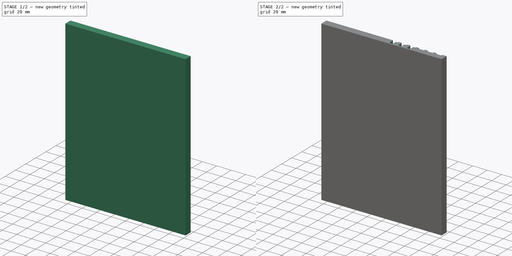
[diagram: build sequence overview — one tinted view per stage of 2, left to right]
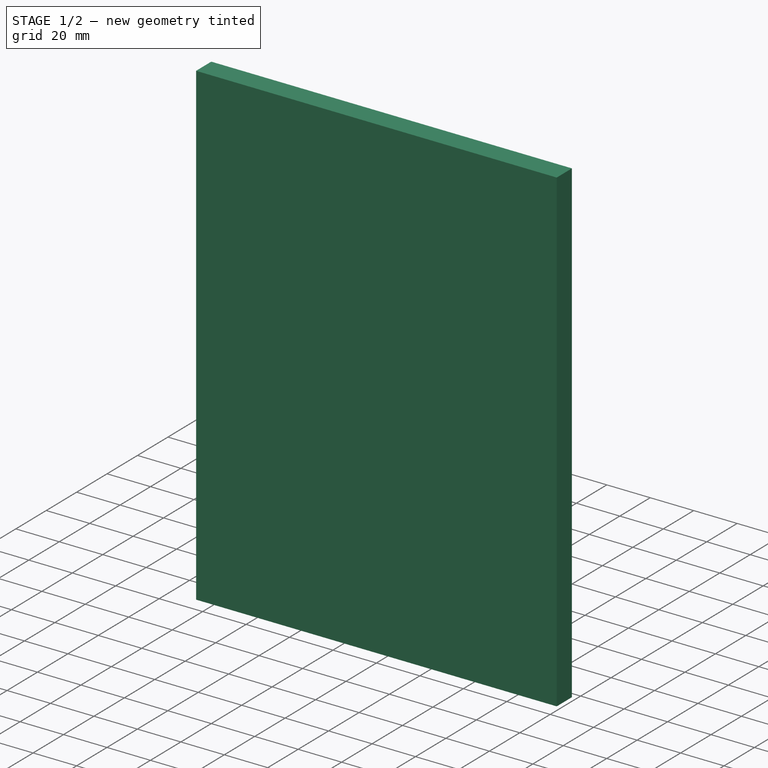
[diagram: stage 1 of 2 — iso view after this stage's code; geometry added in this stage tinted green]
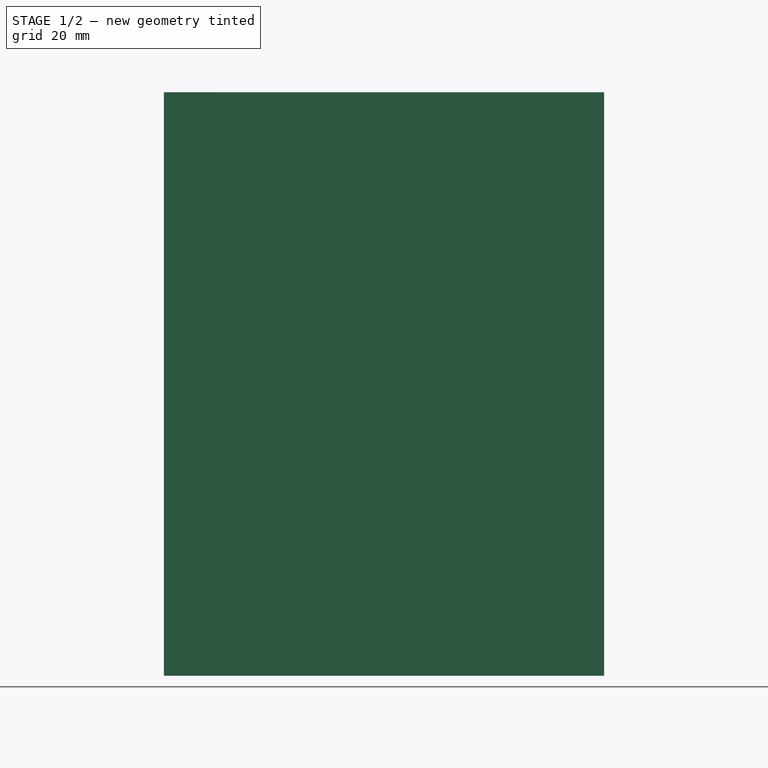
[diagram: stage 1 of 2 — front view after this stage's code; geometry added in this stage tinted green]
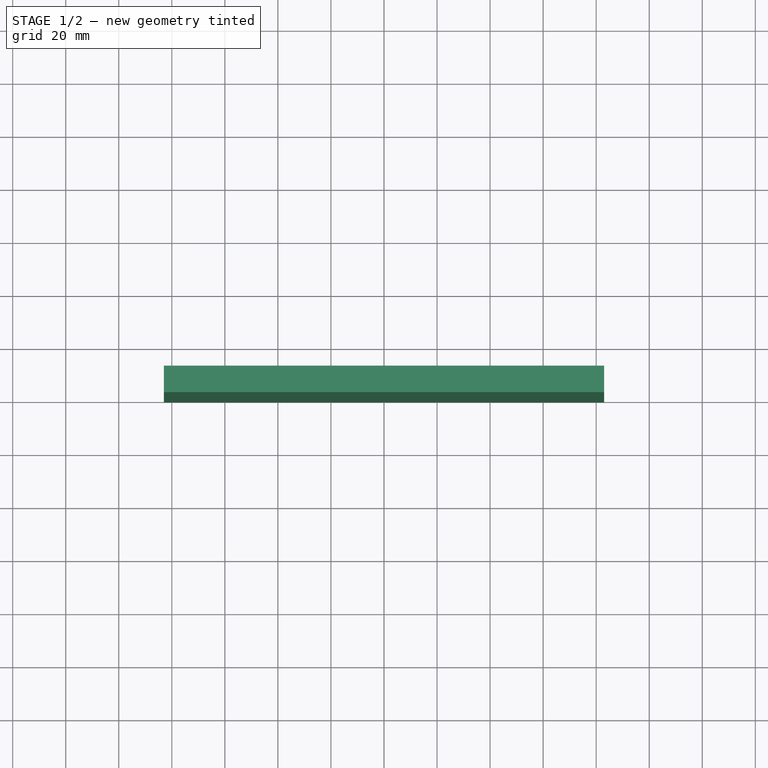
[diagram: stage 1 of 2 — top view after this stage's code; geometry added in this stage tinted green]
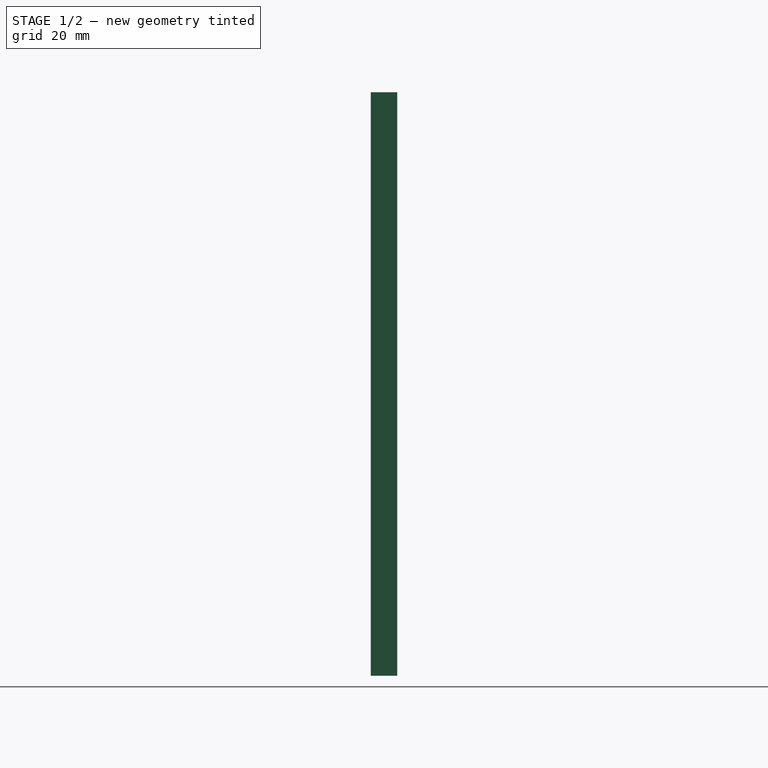
[diagram: stage 1 of 2 — right view after this stage's code; geometry added in this stage tinted green]
FCSTD DOCUMENT  (FreeCAD 0.16R6698 (Git))
Label: pnp feeder base
License: All rights reserved
LicenseURL: http://en.wikipedia.org/wiki/All_rights_reserved
objects: Sketcher::SketchObject×2, PartDesign::Pad×1, PartDesign::Pocket×1
note: 6 computed .brp shape members not serialized (recipe doc carries the construction recipe); baked Part::Feature solids carry a one-line shape summary decoded from their .brp

FEATURE [Sketcher::SketchObject] Sketch  label="base"
  sketch-geometry (6):
    g0: LineSegment [constr] StartX=-80 StartY=22.6606 StartZ=0 EndX=-80 EndY=0 EndZ=0
    g1: LineSegment [constr] StartX=80 StartY=22.6606 StartZ=0 EndX=80 EndY=0 EndZ=0
    g2: LineSegment StartX=-83 StartY=0 StartZ=0 EndX=83 EndY=0 EndZ=0
    g3: LineSegment StartX=83 StartY=0 StartZ=0 EndX=83 EndY=10 EndZ=0
    g4: LineSegment StartX=83 StartY=10 StartZ=0 EndX=-83 EndY=10 EndZ=0
    g5: LineSegment StartX=-83 StartY=10 StartZ=0 EndX=-83 EndY=0 EndZ=0
  constraints (18):
    c: Vertical(g0)
    c: Vertical(g1)
    c: PointOnObject(g1,g-1)
    c: DistanceX(g0,g1) = 160
    c: PointOnObject(g0,g-1)
    c: Symmetric(g0,g1,g-2)
    c: Coincident(g2,g3)
    c: Coincident(g3,g4)
    c: Coincident(g4,g5)
    c: Coincident(g5,g2)
    c: Horizontal(g2)
    c: Horizontal(g4)
    c: Vertical(g3)
    c: Vertical(g5)
    c: PointOnObject(g2,g-1)
    c: DistanceY(g5,g5) = 10
    c: DistanceX(g4,g4) = 166
    c: Symmetric(g4,g3,g-2)
FEATURE [PartDesign::Pad] Pad
  Length = 220
  Length2 = 100
  Sketch = -> Sketch
  Type = 0
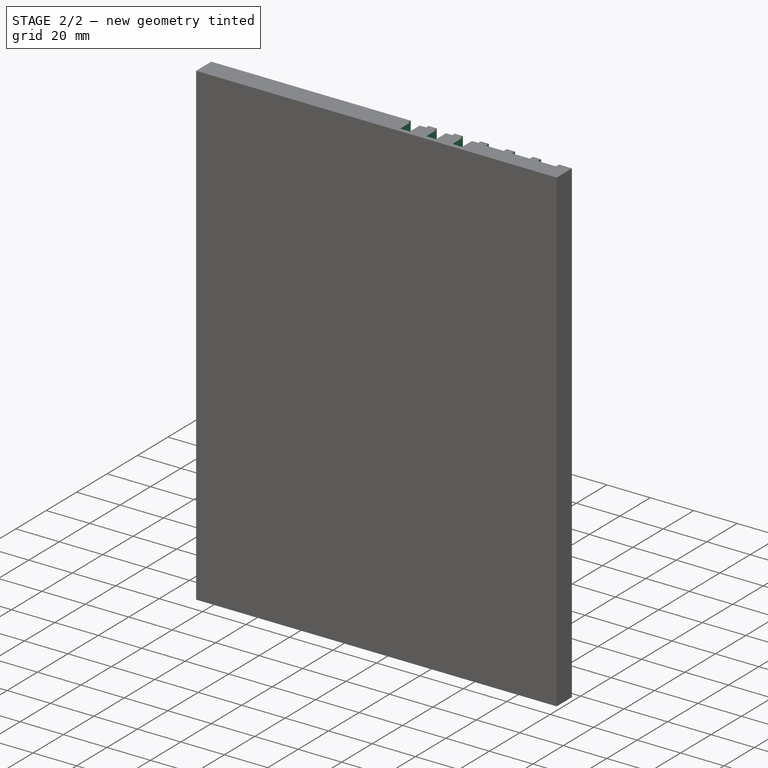
[diagram: stage 2 of 2 — iso view after this stage's code; geometry added in this stage tinted green]
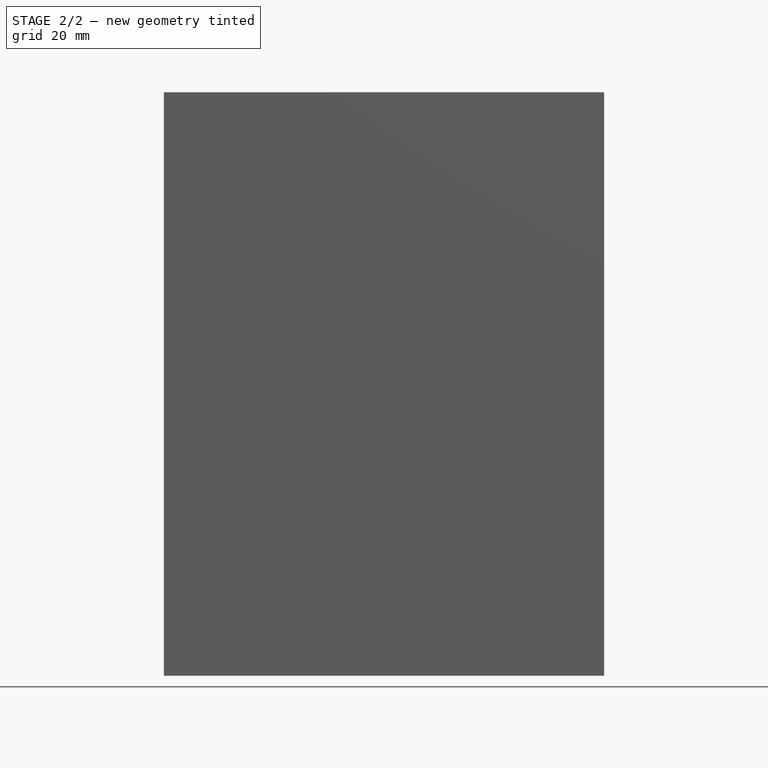
[diagram: stage 2 of 2 — front view after this stage's code; geometry added in this stage tinted green]
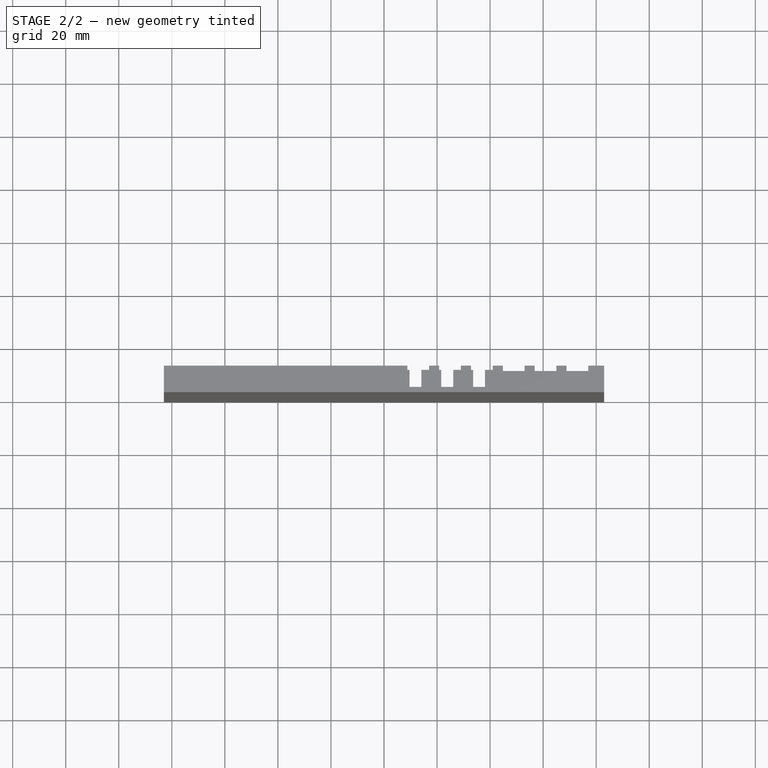
[diagram: stage 2 of 2 — top view after this stage's code; geometry added in this stage tinted green]
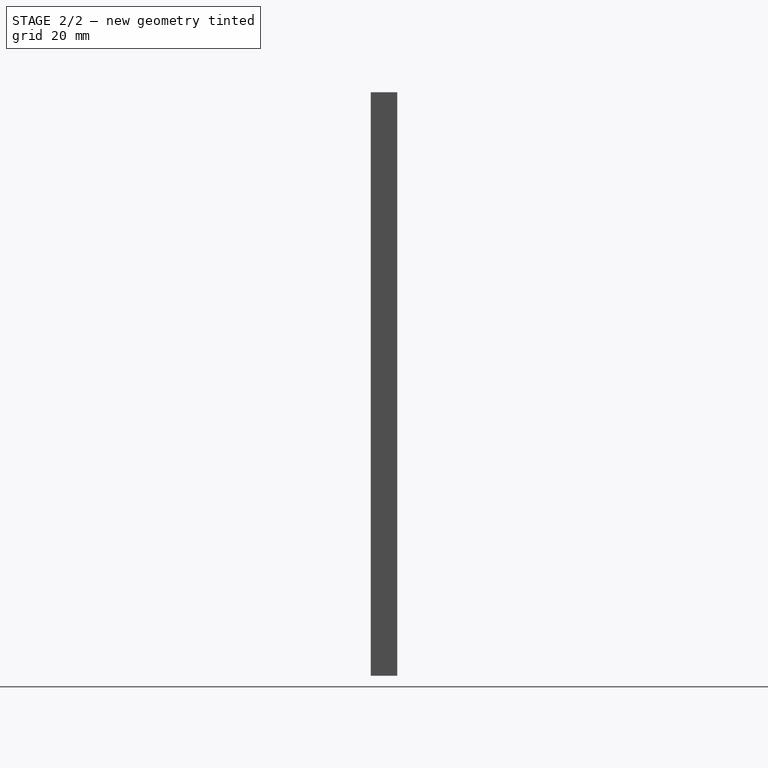
[diagram: stage 2 of 2 — right view after this stage's code; geometry added in this stage tinted green]
FEATURE [Sketcher::SketchObject] Sketch001  label="notches"
  ExternalGeometry = -> [Pad]
  Placement = pos=(0,0,220) rot=(0,0,1;0rad)
  Support = -> Pad [Face6]
  sketch-geometry (38):
    g0: LineSegment [constr] StartX=-80 StartY=12.2995 StartZ=0 EndX=-80 EndY=0 EndZ=0
    g1: LineSegment [constr] StartX=80 StartY=12.2995 StartZ=0 EndX=80 EndY=0 EndZ=0
    g2: LineSegment StartX=77 StartY=10 StartZ=0 EndX=68.8 EndY=10 EndZ=0
    g3: LineSegment StartX=68.8 StartY=10 StartZ=0 EndX=68.8 EndY=8 EndZ=0
    g4: LineSegment StartX=68.8 StartY=8 StartZ=0 EndX=77 EndY=8 EndZ=0
    g5: LineSegment StartX=77 StartY=8 StartZ=0 EndX=77 EndY=10 EndZ=0
    g6: LineSegment StartX=65 StartY=10 StartZ=0 EndX=56.8 EndY=10 EndZ=0
    g7: LineSegment StartX=56.8 StartY=10 StartZ=0 EndX=56.8 EndY=8 EndZ=0
    g8: LineSegment StartX=56.8 StartY=8 StartZ=0 EndX=65 EndY=8 EndZ=0
    g9: LineSegment StartX=65 StartY=8 StartZ=0 EndX=65 EndY=10 EndZ=0
    g10: LineSegment StartX=32.8 StartY=10 StartZ=0 EndX=41 EndY=10 EndZ=0
    g11: LineSegment StartX=41 StartY=10 StartZ=0 EndX=41 EndY=8.4 EndZ=0
    g12: LineSegment StartX=41 StartY=8.4 StartZ=0 EndX=38.1 EndY=8.4 EndZ=0
    g13: LineSegment StartX=32.8 StartY=8.4 StartZ=0 EndX=32.8 EndY=10 EndZ=0
    g14: LineSegment StartX=38.1 StartY=8.4 StartZ=0 EndX=38.1 EndY=2 EndZ=0
    g15: LineSegment StartX=38.1 StartY=2 StartZ=0 EndX=33.6 EndY=2 EndZ=0
    g16: LineSegment StartX=33.6 StartY=2 StartZ=0 EndX=33.6 EndY=8.4 EndZ=0
    g17: LineSegment StartX=33.6 StartY=8.4 StartZ=0 EndX=32.8 EndY=8.4 EndZ=0
    g18: LineSegment StartX=44.8 StartY=10 StartZ=0 EndX=53 EndY=10 EndZ=0
    g19: LineSegment StartX=53 StartY=10 StartZ=0 EndX=53 EndY=8 EndZ=0
    g20: LineSegment StartX=53 StartY=8 StartZ=0 EndX=44.8 EndY=8 EndZ=0
    g21: LineSegment StartX=44.8 StartY=8 StartZ=0 EndX=44.8 EndY=10 EndZ=0
    g22: LineSegment StartX=20.8 StartY=10 StartZ=0 EndX=20.8 EndY=8.4 EndZ=0
    g23: LineSegment StartX=20.8 StartY=8.4 StartZ=0 EndX=21.6 EndY=8.4 EndZ=0
    g24: LineSegment StartX=21.6 StartY=8.4 StartZ=0 EndX=21.6 EndY=2 EndZ=0
    g25: LineSegment StartX=21.6 StartY=2 StartZ=0 EndX=26.1 EndY=2 EndZ=0
    g26: LineSegment StartX=26.1 StartY=2 StartZ=0 EndX=26.1 EndY=8.4 EndZ=0
    g27: LineSegment StartX=26.1 StartY=8.4 StartZ=0 EndX=29 EndY=8.4 EndZ=0
    g28: LineSegment StartX=29 StartY=8.4 StartZ=0 EndX=29 EndY=10 EndZ=0
    g29: LineSegment StartX=29 StartY=10 StartZ=0 EndX=20.8 EndY=10 EndZ=0
    g30: LineSegment StartX=17 StartY=10 StartZ=0 EndX=17 EndY=8.4 EndZ=0
    g31: LineSegment StartX=17 StartY=8.4 StartZ=0 EndX=14.1 EndY=8.4 EndZ=0
    g32: LineSegment StartX=14.1 StartY=8.4 StartZ=0 EndX=14.1 EndY=2 EndZ=0
    g33: LineSegment StartX=14.1 StartY=2 StartZ=0 EndX=9.6 EndY=2 EndZ=0
    g34: LineSegment StartX=9.6 StartY=2 StartZ=0 EndX=9.6 EndY=8.4 EndZ=0
    g35: LineSegment StartX=9.6 StartY=8.4 StartZ=0 EndX=8.8 EndY=8.4 EndZ=0
    g36: LineSegment StartX=8.8 StartY=8.4 StartZ=0 EndX=8.8 EndY=10 EndZ=0
    g37: LineSegment StartX=8.8 StartY=10 StartZ=0 EndX=17 EndY=10 EndZ=0
  constraints (114):
    c: Vertical(g0)
    c: Vertical(g1)
    c: PointOnObject(g0,g-1)
    c: PointOnObject(g1,g-1)
    c: Symmetric(g0,g1,g-2)
    c: DistanceX(g0,g1) = 160
    c: Coincident(g2,g3)
    c: Coincident(g3,g4)
    c: Coincident(g4,g5)
    c: Coincident(g5,g2)
    c: Horizontal(g2)
    c: Horizontal(g4)
    c: Vertical(g3)
    c: Vertical(g5)
    c: Coincident(g6,g7)
    c: Coincident(g7,g8)
    c: Coincident(g8,g9)
    c: Coincident(g9,g6)
    c: Horizontal(g6)
    c: Horizontal(g8)
    c: Vertical(g7)
    c: Vertical(g9)
    c: DistanceX(g2,g-3) = 6
    c: DistanceX(g2,g2) = 8.2
    c: DistanceX(g6,g2) = 3.8
    c: DistanceX(g6,g6) = 8.2
    c: DistanceY(g9,g9) = 2
    c: DistanceY(g3,g3) = 2
    c: PointOnObject(g6,g-4)
    c: PointOnObject(g2,g-4)
    c: Coincident(g10,g11)
    c: Coincident(g11,g12)
    c: Coincident(g17,g13)
    c: Coincident(g13,g10)
    c: Horizontal(g10)
    c: Horizontal(g12)
    c: Vertical(g11)
    c: Vertical(g13)
    c: PointOnObject(g10,g-4)
    c: DistanceY(g11,g11) = 1.6
    c: DistanceX(g10,g10) = 8.2
    c: Coincident(g14,g15)
    c: Coincident(g15,g16)
    c: Horizontal(g15)
    c: Vertical(g14)
    c: Vertical(g16)
    c: PointOnObject(g16,g12)
    c: PointOnObject(g12,g14)
    c: PointOnObject(g17,g16)
    c: Tangent(g12,g17)
    c: DistanceX(g17,g17) = 0.8
    c: DistanceY(g16,g16) = 6.4
    c: DistanceX(g15,g15) = 4.5
    c: Coincident(g18,g19)
    c: Coincident(g19,g20)
    c: Coincident(g20,g21)
    c: Coincident(g21,g18)
    c: Horizontal(g18)
    c: Horizontal(g20)
    c: Vertical(g19)
    c: Vertical(g21)
    c: PointOnObject(g18,g-4)
    c: DistanceY(g21,g21) = 2
    c: DistanceX(g20,g20) = 8.2
    c: DistanceX(g18,g6) = 3.8
    c: DistanceX(g10,g18) = 3.8
    c: PointOnObject(g22,g-4)
    c: Vertical(g22)
    c: Coincident(g22,g23)
    c: Horizontal(g23)
    c: Coincident(g23,g24)
    c: Vertical(g24)
    c: Coincident(g24,g25)
    c: Horizontal(g25)
    c: Coincident(g25,g26)
    c: Vertical(g26)
    c: Coincident(g26,g27)
    c: Horizontal(g27)
    c: Coincident(g27,g28)
    c: PointOnObject(g28,g-4)
    c: Vertical(g28)
    c: Coincident(g28,g29)
    c: Coincident(g29,g22)
    c: Equal(g28,g22)
    c: DistanceY(g28,g28) = 1.6
    c: DistanceX(g23,g23) = 0.8
    c: DistanceY(g24,g24) = 6.4
    c: DistanceX(g25,g25) = 4.5
    c: DistanceX(g28,g10) = 3.8
    c: DistanceX(g22,g28) = 8.2
    c: PointOnObject(g30,g-4)
    c: Vertical(g30)
    c: Coincident(g30,g31)
    c: Horizontal(g31)
    c: Coincident(g31,g32)
    c: Vertical(g32)
    c: Coincident(g32,g33)
    c: Horizontal(g33)
    c: Coincident(g33,g34)
    c: Vertical(g34)
    c: Coincident(g34,g35)
    c: Horizontal(g35)
    c: Coincident(g35,g36)
    c: PointOnObject(g36,g-4)
    c: Coincident(g36,g37)
    c: Coincident(g37,g30)
    c: DistanceX(g30,g22) = 3.8
    c: DistanceY(g36,g36) = 1.6
    c: Equal(g36,g30)
    c: DistanceX(g35,g35) = 0.8
    c: DistanceY(g34,g34) = 6.4
    c: DistanceX(g33,g33) = 4.5
    c: DistanceX(g36,g30) = 8.2
    c: Vertical(g36)
FEATURE [PartDesign::Pocket] Pocket
  Length = 5
  Sketch = -> Sketch001
  Type = 1
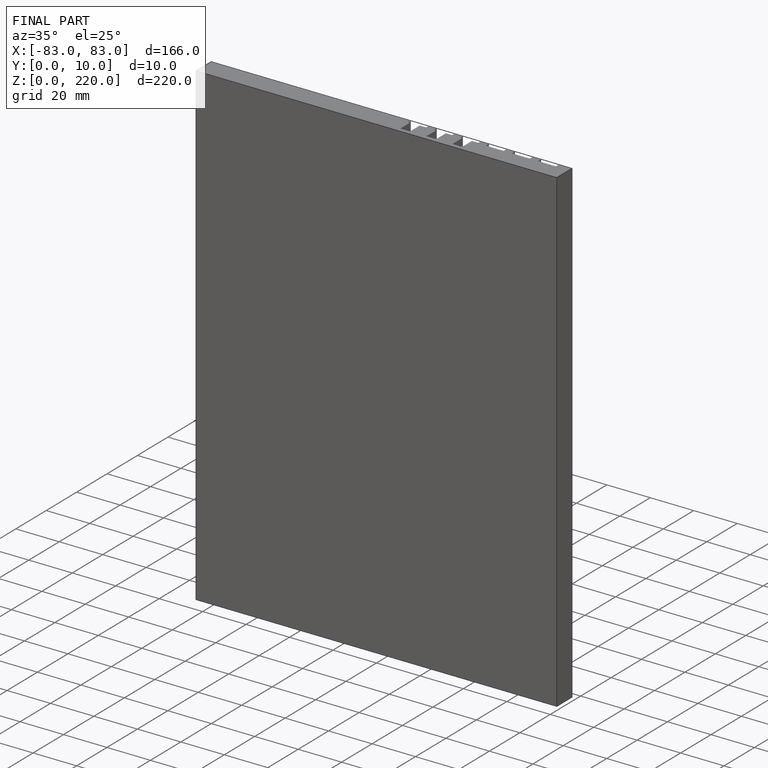
[diagram: finished part — iso view with bounding-box wireframe]
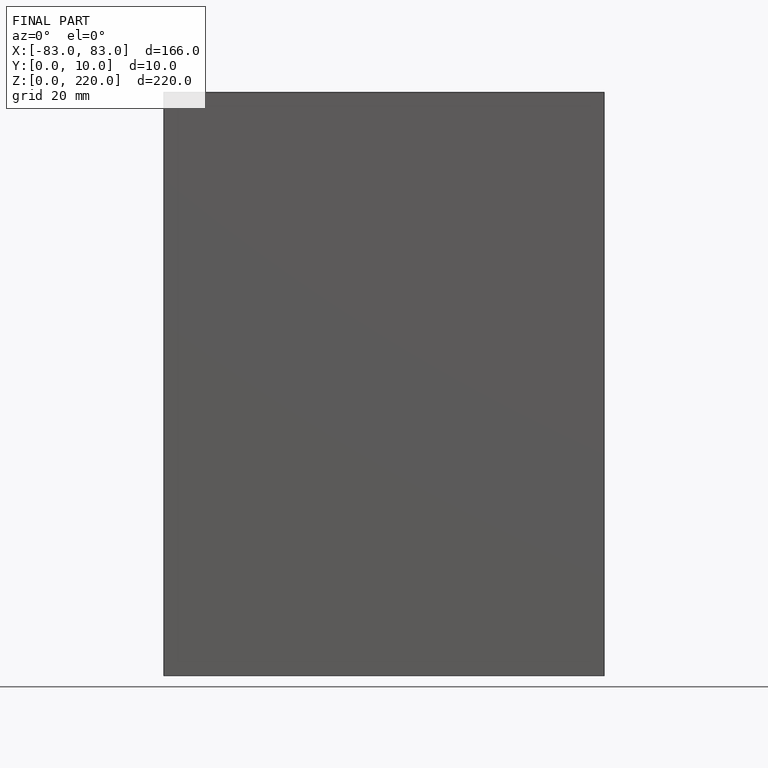
[diagram: finished part — front view with bounding-box wireframe]
